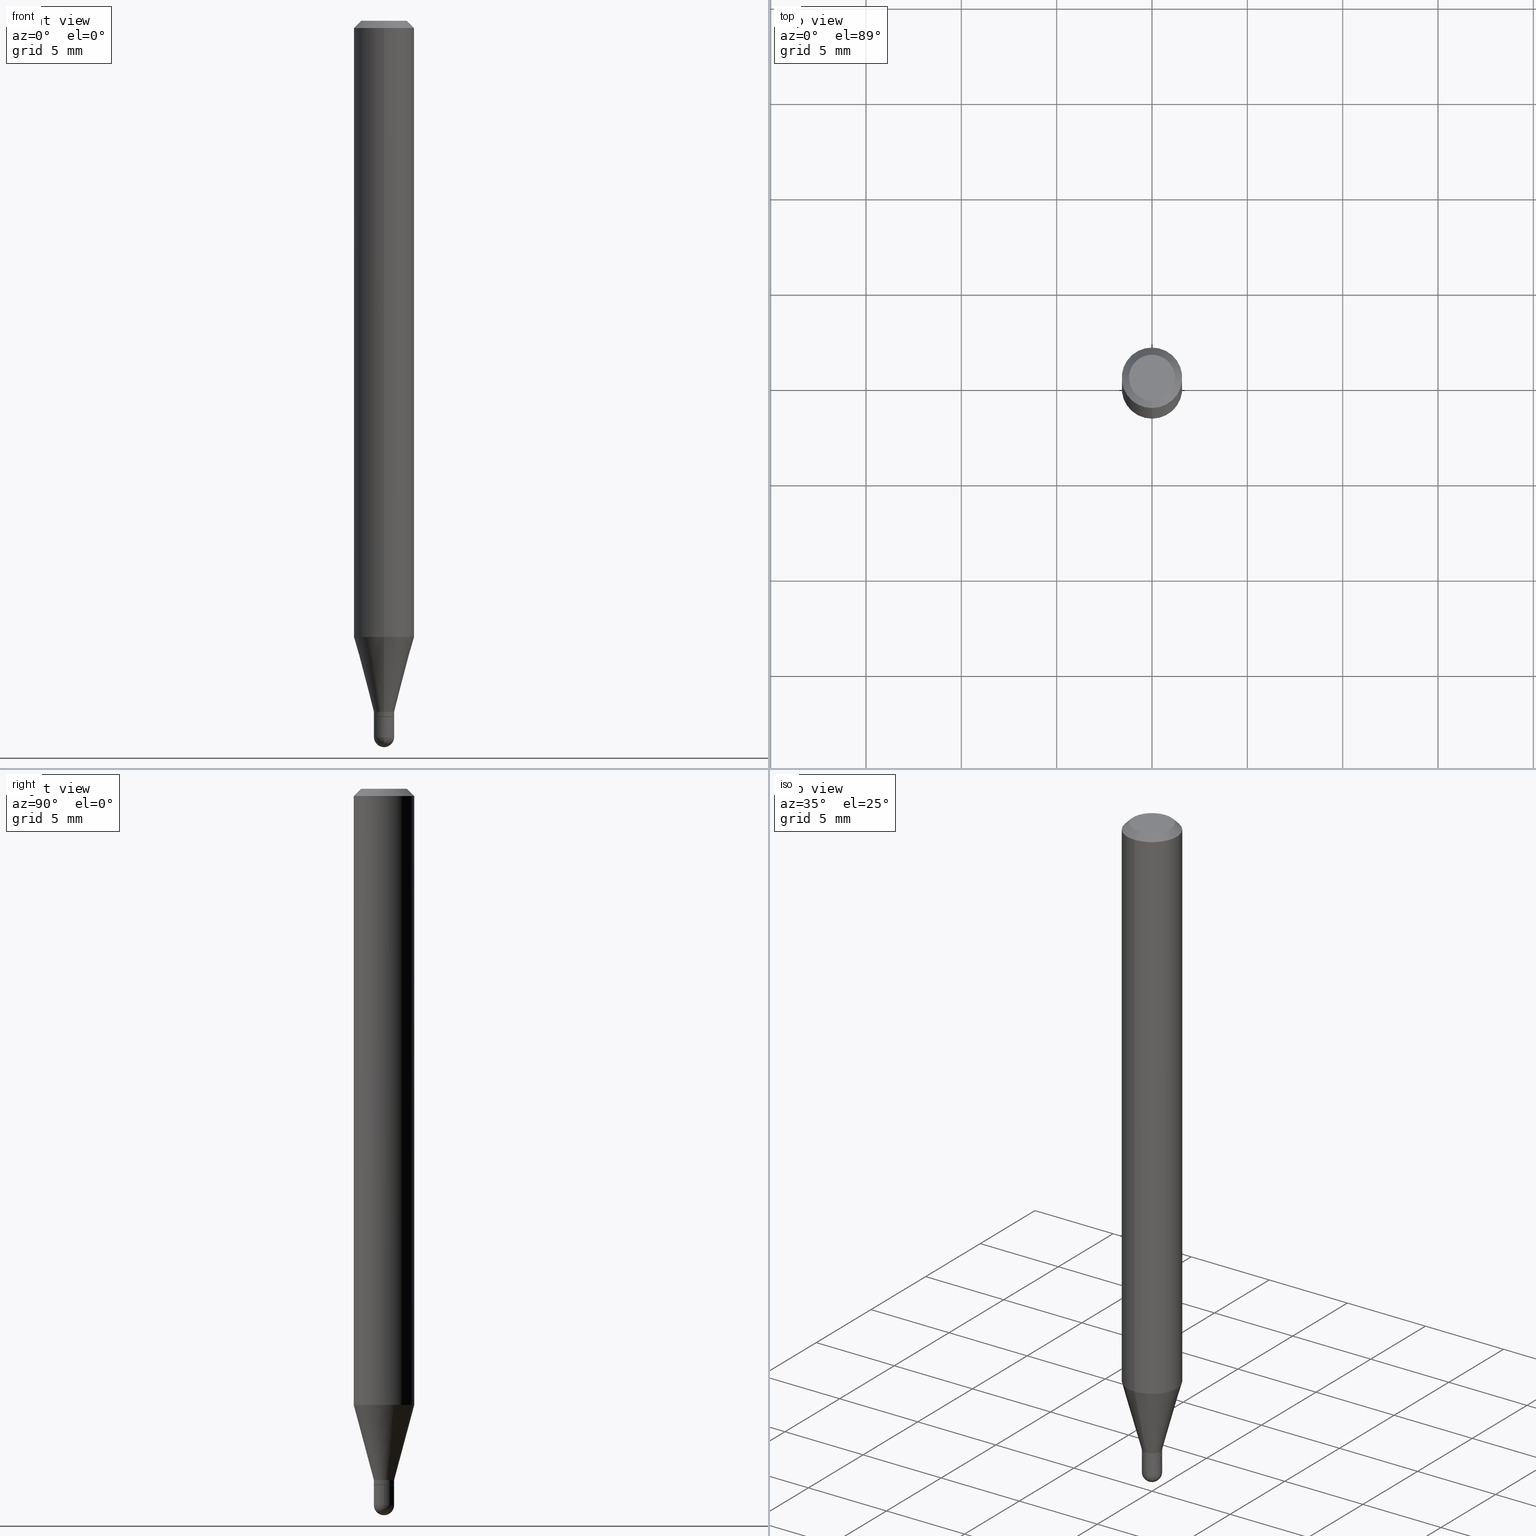
[diagram: canonical four-view strip — front | top / right | iso, engineering-drawing reading convention]
A machine part, canonical four-view strip (front | top / right | iso — engineering-drawing reading convention). The complete STEP part file that produces these views, byte-faithful:
ISO-10303-21;
HEADER;
FILE_DESCRIPTION (( 'STEP AP203' ),
    '1' );
FILE_NAME ('02539.STEP',
    '2024-03-07T20:19:08',
    ( '' ),
    ( '' ),
    'SwSTEP 2.0',
    'SolidWorks 2023',
    '' );
FILE_SCHEMA (( 'CONFIG_CONTROL_DESIGN' ));
ENDSEC;

DATA;
#1 = EDGE_LOOP ( 'NONE', ( #388, #468, #308, #63 ) ) ;
#2 = EDGE_CURVE ( 'NONE', #346, #252, #447, .T. ) ;
#3 = CARTESIAN_POINT ( 'NONE',  ( -1.466422162313761505E-16, -0.02100000000000490363, -1.427000000000000046 ) ) ;
#4 = DATE_AND_TIME ( #358, #172 ) ;
#5 = AXIS2_PLACEMENT_3D ( 'NONE', #84, #413, #50 ) ;
#6 = ORIENTED_EDGE ( 'NONE', *, *, #453, .F. ) ;
#7 = LINE ( 'NONE', #319, #183 ) ;
#8 = PERSON_AND_ORGANIZATION ( #212, #211 ) ;
#9 = CARTESIAN_POINT ( 'NONE',  ( 3.668221272824228849E-31, -5.237196140238213400E-17, -0.01500000000000032904 ) ) ;
#10 = DIRECTION ( 'NONE',  ( -2.445480848549432183E-29, 3.491464093492065747E-15, 1.000000000000000000 ) ) ;
#11 = APPROVAL ( #321, 'UNSPECIFIED' ) ;
#12 = CIRCLE ( 'NONE', #217, 0.02099999999999992151 ) ;
#13 = AXIS2_PLACEMENT_3D ( 'NONE', #225, #165, #233 ) ;
#14 = LOCAL_TIME ( 15, 19, 8.000000000000000000, #489 ) ;
#15 = FACE_OUTER_BOUND ( 'NONE', #302, .T. ) ;
#16 = EDGE_LOOP ( 'NONE', ( #424, #428, #434, #29 ) ) ;
#17 = PLANE ( 'NONE',  #125 ) ;
#18 = CALENDAR_DATE ( 2024, 7, 3 ) ;
#19 = EDGE_CURVE ( 'NONE', #178, #270, #56, .T. ) ;
#20 = CONICAL_SURFACE ( 'NONE', #344, 0.02099999999999992151, 0.2617993877991500740 ) ;
#21 = ORIENTED_EDGE ( 'NONE', *, *, #383, .T. ) ;
#22 = DIRECTION ( 'NONE',  ( 1.839019923739598738E-15, 0.2588190451025247363, 0.9659258262890673130 ) ) ;
#23 = VERTEX_POINT ( 'NONE', #34 ) ;
#24 = EDGE_CURVE ( 'NONE', #399, #58, #43, .T. ) ;
#25 = LENGTH_MEASURE_WITH_UNIT ( LENGTH_MEASURE( 0.02539999999999999897 ), #440 );
#26 = ORIENTED_EDGE ( 'NONE', *, *, #492, .F. ) ;
#27 = DIRECTION ( 'NONE',  ( 1.000000000000000000, -6.982962677686284854E-15, 0.000000000000000000 ) ) ;
#28 = APPLICATION_CONTEXT ( 'configuration controlled 3d designs of mechanical parts and assemblies' ) ;
#29 = ORIENTED_EDGE ( 'NONE', *, *, #338, .F. ) ;
#30 = AXIS2_PLACEMENT_3D ( 'NONE', #479, #349, #27 ) ;
#31 = CIRCLE ( 'NONE', #117, 0.02100000000000020947 ) ;
#32 = DIRECTION ( 'NONE',  ( 1.000000000000000000, -6.982962677686284854E-15, 0.000000000000000000 ) ) ;
#33 = DIRECTION ( 'NONE',  ( -2.445468806185136877E-29, 3.491481338843145188E-15, 1.000000000000000000 ) ) ;
#34 = CARTESIAN_POINT ( 'NONE',  ( 0.02100000000000000477, -5.237222008264718177E-15, -1.479000000000000092 ) ) ;
#35 = ORIENTED_EDGE ( 'NONE', *, *, #460, .F. ) ;
#36 = DIRECTION ( 'NONE',  ( -6.982962677686266711E-15, -1.000000000000000000, 3.491464093492066142E-15 ) ) ;
#37 = DIRECTION ( 'NONE',  ( -2.445480848549432183E-29, 3.491464093492065747E-15, 1.000000000000000000 ) ) ;
#38 = ORIENTED_EDGE ( 'NONE', *, *, #299, .F. ) ;
#39 = DIRECTION ( 'NONE',  ( -6.982962677686265922E-15, -1.000000000000000000, 4.370956789862821150E-15 ) ) ;
#40 = COORDINATED_UNIVERSAL_TIME_OFFSET ( 5, 0, .BEHIND. ) ;
#41 = ORIENTED_EDGE ( 'NONE', *, *, #512, .T. ) ;
#42 = SPHERICAL_SURFACE ( 'NONE', #409, 0.02100000000000020947 ) ;
#43 = LINE ( 'NONE', #3, #462 ) ;
#44 = CARTESIAN_POINT ( 'NONE',  ( 4.440892098500625669E-16, 0.06250000000000000000, -2.182165058432541092E-16 ) ) ;
#45 = PERSON_AND_ORGANIZATION_ROLE ( 'creator' ) ;
#46 = EDGE_CURVE ( 'NONE', #147, #191, #289, .T. ) ;
#47 = ADVANCED_FACE ( 'NONE', ( #357 ), #240, .F. ) ;
#48 = COORDINATED_UNIVERSAL_TIME_OFFSET ( 5, 0, .BEHIND. ) ;
#49 = PERSON_AND_ORGANIZATION_ROLE ( 'design_supplier' ) ;
#50 = DIRECTION ( 'NONE',  ( -6.982962677686265922E-15, -1.000000000000000000, 3.483106191921935554E-15 ) ) ;
#51 = CIRCLE ( 'NONE', #248, 0.02100000000000000477 ) ;
#52 = CC_DESIGN_APPROVAL ( #85, ( #53 ) ) ;
#53 = PRODUCT_DEFINITION ( 'UNKNOWN', '', #250, #377 ) ;
#54 = CARTESIAN_POINT ( 'NONE',  ( -1.431507348925333159E-16, -0.02050000000000501768, -1.437000000000000055 ) ) ;
#55 = EDGE_LOOP ( 'NONE', ( #443, #478, #298, #437 ) ) ;
#56 = CIRCLE ( 'NONE', #229, 0.02100000000000020947 ) ;
#57 = AXIS2_PLACEMENT_3D ( 'NONE', #228, #311, #386 ) ;
#58 = VERTEX_POINT ( 'NONE', #123 ) ;
#59 = COORDINATED_UNIVERSAL_TIME_OFFSET ( 5, 0, .BEHIND. ) ;
#60 = EDGE_CURVE ( 'NONE', #384, #58, #241, .T. ) ;
#61 = CARTESIAN_POINT ( 'NONE',  ( 0.000000000000000000, 0.000000000000000000, 0.000000000000000000 ) ) ;
#62 = FACE_OUTER_BOUND ( 'NONE', #215, .T. ) ;
#63 = ORIENTED_EDGE ( 'NONE', *, *, #145, .F. ) ;
#64 = AXIS2_PLACEMENT_3D ( 'NONE', #451, #430, #387 ) ;
#65 = AXIS2_PLACEMENT_3D ( 'NONE', #152, #187, #406 ) ;
#66 = VERTEX_POINT ( 'NONE', #192 ) ;
#67 = ORIENTED_EDGE ( 'NONE', *, *, #174, .F. ) ;
#68 = DIRECTION ( 'NONE',  ( -4.851104656540964275E-15, -0.7071067811865500152, -0.7071067811865450192 ) ) ;
#69 = CARTESIAN_POINT ( 'NONE',  ( 3.840629472727447874E-16, 0.04749999999999999362, -4.939923113072091241E-16 ) ) ;
#70 = ORIENTED_EDGE ( 'NONE', *, *, #200, .T. ) ;
#71 = AXIS2_PLACEMENT_3D ( 'NONE', #199, #438, #267 ) ;
#72 = LOCAL_TIME ( 15, 19, 8.000000000000000000, #166 ) ;
#73 = DIRECTION ( 'NONE',  ( -2.445480848549432183E-29, 3.491464093492066142E-15, 1.000000000000000000 ) ) ;
#74 = ORIENTED_EDGE ( 'NONE', *, *, #408, .T. ) ;
#75 = FACE_OUTER_BOUND ( 'NONE', #55, .T. ) ;
#76 = MECHANICAL_CONTEXT ( 'NONE', #28, 'mechanical' ) ;
#77 = CC_DESIGN_PERSON_AND_ORGANIZATION_ASSIGNMENT ( #366, #129, ( #250 ) ) ;
#78 = ORIENTED_EDGE ( 'NONE', *, *, #167, .T. ) ;
#79 = CARTESIAN_POINT ( 'NONE',  ( 3.489701170880039634E-29, -4.982319261413178250E-15, -1.427000000000000046 ) ) ;
#80 = DIRECTION ( 'NONE',  ( -1.807323732225328562E-15, -0.2588190451025179639, 0.9659258262890690894 ) ) ;
#81 = AXIS2_PLACEMENT_3D ( 'NONE', #279, #483, #398 ) ;
#82 = APPROVAL_DATE_TIME ( #280, #11 ) ;
#83 = AXIS2_PLACEMENT_3D ( 'NONE', #496, #294, #481 ) ;
#84 = CARTESIAN_POINT ( 'NONE',  ( 3.668221272824228849E-31, -5.237196140238213400E-17, -0.01500000000000032904 ) ) ;
#85 = APPROVAL ( #244, 'UNSPECIFIED' ) ;
#86 = APPROVAL_ROLE ( '' ) ;
#87 = DIRECTION ( 'NONE',  ( -6.982962677686266711E-15, -1.000000000000000000, 0.000000000000000000 ) ) ;
#88 = ADVANCED_FACE ( 'NONE', ( #316 ), #122, .T. ) ;
#89 = PERSON_AND_ORGANIZATION ( #212, #211 ) ;
#90 = CLOSED_SHELL ( 'NONE', ( #426, #179, #259, #193, #458, #143, #88, #170, #47, #380, #365, #465 ) ) ;
#91 = APPROVAL_DATE_TIME ( #495, #216 ) ;
#92 = CARTESIAN_POINT ( 'NONE',  ( 0.000000000000000000, 0.000000000000000000, 0.000000000000000000 ) ) ;
#93 = ORIENTED_EDGE ( 'NONE', *, *, #299, .T. ) ;
#94 = AXIS2_PLACEMENT_3D ( 'NONE', #261, #394, #32 ) ;
#95 = LOCAL_TIME ( 15, 19, 8.000000000000000000, #48 ) ;
#96 = CC_DESIGN_DATE_AND_TIME_ASSIGNMENT ( #209, #320, ( #53 ) ) ;
#97 = APPROVAL_ROLE ( '' ) ;
#98 = FACE_OUTER_BOUND ( 'NONE', #112, .T. ) ;
#99 = ORIENTED_EDGE ( 'NONE', *, *, #500, .F. ) ;
#100 = CARTESIAN_POINT ( 'NONE',  ( 3.514155979365534026E-29, -5.017233902348097898E-15, -1.437000000000000055 ) ) ;
#101 = CARTESIAN_POINT ( 'NONE',  ( 3.616848364347817323E-29, -5.163900900149012660E-15, -1.479000000000000092 ) ) ;
#102 = DIRECTION ( 'NONE',  ( -1.000000000000000000, 6.982962677686265922E-15, -4.876176775795935793E-29 ) ) ;
#103 = CONICAL_SURFACE ( 'NONE', #171, 0.06250000000000000000, 0.7853981633974483900 ) ;
#104 = ORIENTED_EDGE ( 'NONE', *, *, #326, .T. ) ;
#105 =( GEOMETRIC_REPRESENTATION_CONTEXT ( 3 ) GLOBAL_UNCERTAINTY_ASSIGNED_CONTEXT ( ( #370 ) ) GLOBAL_UNIT_ASSIGNED_CONTEXT ( ( #194, #190, #507 ) ) REPRESENTATION_CONTEXT ( 'NONE', 'WORKASPACE' ) );
#106 = ORIENTED_EDGE ( 'NONE', *, *, #174, .T. ) ;
#107 = CARTESIAN_POINT ( 'NONE',  ( 1.492139745096551172E-16, 0.02099999999999484224, -1.436500000000000110 ) ) ;
#108 = DIRECTION ( 'NONE',  ( -2.445480848549432183E-29, 3.491464093492066142E-15, 1.000000000000000000 ) ) ;
#109 = EDGE_CURVE ( 'NONE', #461, #270, #126, .T. ) ;
#110 = CARTESIAN_POINT ( 'NONE',  ( -0.02100000000000000477, -4.941365817523685183E-15, -1.479000000000000092 ) ) ;
#111 = CARTESIAN_POINT ( 'NONE',  ( 3.665509435466790578E-29, -5.241079645682034568E-15, -1.500000000000000222 ) ) ;
#112 = EDGE_LOOP ( 'NONE', ( #78, #41 ) ) ;
#113 = CARTESIAN_POINT ( 'NONE',  ( -0.02100000000000000477, -4.941365817523685183E-15, -1.437000000000000055 ) ) ;
#114 = LINE ( 'NONE', #154, #281 ) ;
#115 = ORIENTED_EDGE ( 'NONE', *, *, #109, .F. ) ;
#116 = CARTESIAN_POINT ( 'NONE',  ( 3.615052515140540551E-29, -5.166472658427222799E-15, -1.479000000000000092 ) ) ;
#117 = AXIS2_PLACEMENT_3D ( 'NONE', #498, #144, #389 ) ;
#118 = DIRECTION ( 'NONE',  ( 6.982962677686265922E-15, 1.000000000000000000, -3.483106191921935554E-15 ) ) ;
#119 = DIRECTION ( 'NONE',  ( 1.000000000000000000, -6.982962677686284854E-15, 0.000000000000000000 ) ) ;
#120 = FACE_OUTER_BOUND ( 'NONE', #288, .T. ) ;
#121 = EDGE_LOOP ( 'NONE', ( #318, #151, #475, #497 ) ) ;
#122 = CYLINDRICAL_SURFACE ( 'NONE', #13, 0.06250000000000000000 ) ;
#123 = CARTESIAN_POINT ( 'NONE',  ( -4.364351673553605587E-16, -0.06250000000000445477, -1.272119891485891552 ) ) ;
#124 = CALENDAR_DATE ( 2024, 7, 3 ) ;
#125 = AXIS2_PLACEMENT_3D ( 'NONE', #182, #296, #102 ) ;
#126 = CIRCLE ( 'NONE', #30, 0.02100000000000000477 ) ;
#127 = VECTOR ( 'NONE', #68, 39.37007874015748143 ) ;
#128 = CARTESIAN_POINT ( 'NONE',  ( -1.466422162313764217E-16, -0.02100000000000501119, -1.436500000000000110 ) ) ;
#129 = PERSON_AND_ORGANIZATION_ROLE ( 'creator' ) ;
#130 = CC_DESIGN_DATE_AND_TIME_ASSIGNMENT ( #4, #317, ( #141 ) ) ;
#131 = VECTOR ( 'NONE', #444, 39.37007874015748143 ) ;
#132 = CIRCLE ( 'NONE', #480, 0.02100000000000000477 ) ;
#133 = ADVANCED_FACE ( 'NONE', ( #405 ), #509, .T. ) ;
#134 = APPROVAL_STATUS ( 'not_yet_approved' ) ;
#135 = DIRECTION ( 'NONE',  ( -2.445480848549432183E-29, 3.491464093492065747E-15, 1.000000000000000000 ) ) ;
#136 = ORIENTED_EDGE ( 'NONE', *, *, #408, .F. ) ;
#137 = EDGE_CURVE ( 'NONE', #356, #397, #493, .T. ) ;
#138 = DIRECTION ( 'NONE',  ( -6.982962677686265922E-15, -1.000000000000000000, 3.483106191921935554E-15 ) ) ;
#139 = CC_DESIGN_PERSON_AND_ORGANIZATION_ASSIGNMENT ( #454, #49, ( #250 ) ) ;
#140 = CARTESIAN_POINT ( 'NONE',  ( 3.668221272824228849E-31, -5.237196140238213400E-17, -0.01500000000000032904 ) ) ;
#141 = SECURITY_CLASSIFICATION ( '', '', #368 ) ;
#142 = DIRECTION ( 'NONE',  ( -4.937700262164674260E-15, -0.7071067811865632269, 0.7071067811865319186 ) ) ;
#143 = ADVANCED_FACE ( 'NONE', ( #189 ), #20, .T. ) ;
#144 = DIRECTION ( 'NONE',  ( 1.000000000000000000, -7.105427357601001070E-15, 4.926315508542082329E-29 ) ) ;
#145 = EDGE_CURVE ( 'NONE', #252, #399, #284, .T. ) ;
#146 = DIRECTION ( 'NONE',  ( -2.445480848549432183E-29, 3.491464093492065747E-15, 1.000000000000000000 ) ) ;
#147 = VERTEX_POINT ( 'NONE', #206 ) ;
#148 = EDGE_LOOP ( 'NONE', ( #181, #510, #501, #6 ) ) ;
#149 = AXIS2_PLACEMENT_3D ( 'NONE', #220, #375, #176 ) ;
#150 = CARTESIAN_POINT ( 'NONE',  ( 3.668221272824228849E-31, -5.237196140238213400E-17, -0.01500000000000032904 ) ) ;
#151 = ORIENTED_EDGE ( 'NONE', *, *, #145, .T. ) ;
#152 = CARTESIAN_POINT ( 'NONE',  ( 3.512933238941259587E-29, -5.015488170301352862E-15, -1.436500000000000110 ) ) ;
#153 = DIRECTION ( 'NONE',  ( -2.445480848549432183E-29, 3.491464093492065747E-15, 1.000000000000000000 ) ) ;
#154 = CARTESIAN_POINT ( 'NONE',  ( -4.364351673553916201E-16, -0.06250000000000000000, 2.182165058432541092E-16 ) ) ;
#155 = ORIENTED_EDGE ( 'NONE', *, *, #137, .F. ) ;
#156 = APPLICATION_CONTEXT ( 'configuration controlled 3d designs of mechanical parts and assemblies' ) ;
#157 = LINE ( 'NONE', #262, #203 ) ;
#158 = DIRECTION ( 'NONE',  ( -1.000000000000000000, 6.982962677686265922E-15, -4.883557194083112340E-29 ) ) ;
#159 = CARTESIAN_POINT ( 'NONE',  ( 1.474376176702556294E-16, 0.02049999999999498751, -1.437000000000000055 ) ) ;
#160 = ORIENTED_EDGE ( 'NONE', *, *, #200, .F. ) ;
#161 = AXIS2_PLACEMENT_3D ( 'NONE', #277, #477, #442 ) ;
#162 = APPROVAL_PERSON_ORGANIZATION ( #331, #216, #97 ) ;
#163 = DIRECTION ( 'NONE',  ( -2.445480848549432183E-29, 3.491464093492065747E-15, 1.000000000000000000 ) ) ;
#164 = VERTEX_POINT ( 'NONE', #113 ) ;
#165 = DIRECTION ( 'NONE',  ( -2.445480848549432183E-29, 3.491464093492065747E-15, 1.000000000000000000 ) ) ;
#166 = COORDINATED_UNIVERSAL_TIME_OFFSET ( 5, 0, .BEHIND. ) ;
#167 = EDGE_CURVE ( 'NONE', #218, #164, #51, .T. ) ;
#168 = CARTESIAN_POINT ( 'NONE',  ( -1.466422162313761752E-16, -0.02100000000000527139, -1.479000000000000092 ) ) ;
#169 = APPLICATION_PROTOCOL_DEFINITION ( 'international standard', 'config_control_design', 1994, #156 ) ;
#170 = ADVANCED_FACE ( 'NONE', ( #484 ), #414, .T. ) ;
#171 = AXIS2_PLACEMENT_3D ( 'NONE', #9, #242, #118 ) ;
#172 = LOCAL_TIME ( 15, 19, 8.000000000000000000, #40 ) ;
#173 = PERSON_AND_ORGANIZATION_ROLE ( 'design_owner' ) ;
#174 = EDGE_CURVE ( 'NONE', #23, #218, #7, .T. ) ;
#175 = SHAPE_DEFINITION_REPRESENTATION ( #264, #295 ) ;
#176 = DIRECTION ( 'NONE',  ( -6.982962677686265922E-15, -1.000000000000000000, 4.370956789862821150E-15 ) ) ;
#177 = CIRCLE ( 'NONE', #94, 0.02100000000000000477 ) ;
#178 = VERTEX_POINT ( 'NONE', #111 ) ;
#179 = ADVANCED_FACE ( 'NONE', ( #75 ), #419, .T. ) ;
#180 = LINE ( 'NONE', #330, #301 ) ;
#181 = ORIENTED_EDGE ( 'NONE', *, *, #291, .F. ) ;
#182 = CARTESIAN_POINT ( 'NONE',  ( 1.466422162314467535E-16, 0.02099999999999498795, -1.437000000000000055 ) ) ;
#183 = VECTOR ( 'NONE', #272, 39.37007874015748143 ) ;
#184 = VECTOR ( 'NONE', #142, 39.37007874015748143 ) ;
#185 = DIRECTION ( 'NONE',  ( -6.982962677686266711E-15, -1.000000000000000000, 0.000000000000000000 ) ) ;
#186 = ORIENTED_EDGE ( 'NONE', *, *, #247, .F. ) ;
#187 = DIRECTION ( 'NONE',  ( -2.445480848549432183E-29, 3.491464093492065747E-15, 1.000000000000000000 ) ) ;
#188 = ORIENTED_EDGE ( 'NONE', *, *, #460, .T. ) ;
#189 = FACE_OUTER_BOUND ( 'NONE', #121, .T. ) ;
#190 =( NAMED_UNIT ( * ) PLANE_ANGLE_UNIT ( ) SI_UNIT ( $, .RADIAN. ) );
#191 = VERTEX_POINT ( 'NONE', #69 ) ;
#192 = CARTESIAN_POINT ( 'NONE',  ( 4.440892098500938748E-16, 0.06249999999999995143, -0.01500000000000054588 ) ) ;
#193 = ADVANCED_FACE ( 'NONE', ( #457 ), #213, .T. ) ;
#194 =( CONVERSION_BASED_UNIT ( 'INCH', #25 ) LENGTH_UNIT ( ) NAMED_UNIT ( #227 ) );
#195 = VERTEX_POINT ( 'NONE', #128 ) ;
#196 = CARTESIAN_POINT ( 'NONE',  ( 1.492139745096579522E-16, 0.02099999999999493938, -1.479000000000000092 ) ) ;
#197 = DIRECTION ( 'NONE',  ( -6.982962677686265922E-15, -1.000000000000000000, 0.000000000000000000 ) ) ;
#198 = EDGE_LOOP ( 'NONE', ( #327, #160, #93, #333 ) ) ;
#199 = CARTESIAN_POINT ( 'NONE',  ( 3.316907271900976096E-16, 0.04749999999999999362, -3.299184278740410920E-16 ) ) ;
#200 = EDGE_CURVE ( 'NONE', #191, #147, #334, .T. ) ;
#201 = ORIENTED_EDGE ( 'NONE', *, *, #416, .T. ) ;
#202 = CIRCLE ( 'NONE', #455, 0.02099999999999992498 ) ;
#203 = VECTOR ( 'NONE', #392, 39.37007874015748143 ) ;
#204 = FACE_OUTER_BOUND ( 'NONE', #339, .T. ) ;
#205 = FACE_OUTER_BOUND ( 'NONE', #231, .T. ) ;
#206 = CARTESIAN_POINT ( 'NONE',  ( -3.773273898774340269E-16, -0.04749999999999999362, -1.623032224254629057E-16 ) ) ;
#207 = DATE_AND_TIME ( #278, #14 ) ;
#208 = ADVANCED_FACE ( 'NONE', ( #452 ), #283, .T. ) ;
#209 = DATE_AND_TIME ( #124, #72 ) ;
#210 = PERSON_AND_ORGANIZATION ( #212, #211 ) ;
#211 = ORGANIZATION ( 'UNSPECIFIED', 'UNSPECIFIED', '' ) ;
#212 = PERSON ( 'UNSPECIFIED', 'UNSPECIFIED', 'UNSPECIFIED', ('UNSPECIFIED'), ('UNSPECIFIED'), ('UNSPECIFIED') ) ;
#213 = CYLINDRICAL_SURFACE ( 'NONE', #323, 0.06250000000000000000 ) ;
#214 = EDGE_CURVE ( 'NONE', #346, #195, #202, .T. ) ;
#215 = EDGE_LOOP ( 'NONE', ( #361, #238, #499, #418 ) ) ;
#216 = APPROVAL ( #134, 'UNSPECIFIED' ) ;
#217 = AXIS2_PLACEMENT_3D ( 'NONE', #369, #410, #87 ) ;
#218 = VERTEX_POINT ( 'NONE', #427 ) ;
#219 = VECTOR ( 'NONE', #363, 39.37007874015748143 ) ;
#220 = CARTESIAN_POINT ( 'NONE',  ( 3.110944831687530350E-29, -4.441560923740014172E-15, -1.272119891485891774 ) ) ;
#221 = ORIENTED_EDGE ( 'NONE', *, *, #46, .F. ) ;
#222 = CARTESIAN_POINT ( 'NONE',  ( -4.287811248607203282E-16, -0.06250000000000005551, -0.01500000000000011047 ) ) ;
#223 = ORIENTED_EDGE ( 'NONE', *, *, #291, .T. ) ;
#224 = DIRECTION ( 'NONE',  ( -2.445468806185136597E-29, 3.491481338843145583E-15, 1.000000000000000000 ) ) ;
#225 = CARTESIAN_POINT ( 'NONE',  ( 0.000000000000000000, 0.000000000000000000, 0.000000000000000000 ) ) ;
#226 = ADVANCED_FACE ( 'NONE', ( #98 ), #17, .F. ) ;
#227 = DIMENSIONAL_EXPONENTS ( 1.000000000000000000, 0.000000000000000000, 0.000000000000000000, 0.000000000000000000, 0.000000000000000000, 0.000000000000000000, 0.000000000000000000 ) ;
#228 = CARTESIAN_POINT ( 'NONE',  ( 3.514138674488041056E-29, -5.017258683917600838E-15, -1.437000000000000055 ) ) ;
#229 = AXIS2_PLACEMENT_3D ( 'NONE', #395, #158, #197 ) ;
#230 = CC_DESIGN_SECURITY_CLASSIFICATION ( #141, ( #250 ) ) ;
#231 = EDGE_LOOP ( 'NONE', ( #340, #265, #115, #403 ) ) ;
#232 = CARTESIAN_POINT ( 'NONE',  ( 0.000000000000000000, 0.000000000000000000, 0.000000000000000000 ) ) ;
#233 = DIRECTION ( 'NONE',  ( -6.982962677686265922E-15, -1.000000000000000000, 3.491464093492065747E-15 ) ) ;
#234 = CARTESIAN_POINT ( 'NONE',  ( 3.514155979365534026E-29, -5.017233902348097898E-15, -1.437000000000000055 ) ) ;
#235 = ORIENTED_EDGE ( 'NONE', *, *, #109, .T. ) ;
#236 = CARTESIAN_POINT ( 'NONE',  ( 3.514155979365534026E-29, -5.017233902348097898E-15, -1.437000000000000055 ) ) ;
#237 = DIRECTION ( 'NONE',  ( -2.445480848549432183E-29, 3.491464093492066142E-15, 1.000000000000000000 ) ) ;
#238 = ORIENTED_EDGE ( 'NONE', *, *, #137, .T. ) ;
#239 = DIRECTION ( 'NONE',  ( -6.982962677686266711E-15, -1.000000000000000000, 0.000000000000000000 ) ) ;
#240 = PLANE ( 'NONE',  #71 ) ;
#241 = CIRCLE ( 'NONE', #300, 0.06250000000000000000 ) ;
#242 = DIRECTION ( 'NONE',  ( 2.445480848549432183E-29, -3.491464093492065747E-15, -1.000000000000000000 ) ) ;
#243 = DIRECTION ( 'NONE',  ( -6.982962677686266711E-15, -1.000000000000000000, 0.000000000000000000 ) ) ;
#244 = APPROVAL_STATUS ( 'not_yet_approved' ) ;
#245 = DIRECTION ( 'NONE',  ( -6.982962677686265922E-15, -1.000000000000000000, 3.491464093492066142E-15 ) ) ;
#246 = CARTESIAN_POINT ( 'NONE',  ( 3.512933238941259587E-29, -5.015488170301352862E-15, -1.436500000000000110 ) ) ;
#247 = EDGE_CURVE ( 'NONE', #195, #399, #256, .T. ) ;
#248 = AXIS2_PLACEMENT_3D ( 'NONE', #353, #472, #119 ) ;
#249 = DIRECTION ( 'NONE',  ( -6.982962677686266711E-15, -1.000000000000000000, 0.000000000000000000 ) ) ;
#250 = PRODUCT_DEFINITION_FORMATION_WITH_SPECIFIED_SOURCE ( 'ANY', '', #347, .NOT_KNOWN. ) ;
#251 = LINE ( 'NONE', #491, #184 ) ;
#252 = VERTEX_POINT ( 'NONE', #400 ) ;
#253 = CC_DESIGN_PERSON_AND_ORGANIZATION_ASSIGNMENT ( #411, #45, ( #53 ) ) ;
#254 = DIRECTION ( 'NONE',  ( -2.445480848549431342E-29, 3.491464093492066142E-15, 1.000000000000000000 ) ) ;
#255 = FACE_OUTER_BOUND ( 'NONE', #16, .T. ) ;
#256 = LINE ( 'NONE', #314, #131 ) ;
#257 = AXIS2_PLACEMENT_3D ( 'NONE', #140, #146, #138 ) ;
#258 = ORIENTED_EDGE ( 'NONE', *, *, #512, .F. ) ;
#259 = ADVANCED_FACE ( 'NONE', ( #204 ), #103, .T. ) ;
#260 = ORIENTED_EDGE ( 'NONE', *, *, #450, .T. ) ;
#261 = CARTESIAN_POINT ( 'NONE',  ( 3.616848364347817323E-29, -5.163900900149012660E-15, -1.479000000000000092 ) ) ;
#262 = CARTESIAN_POINT ( 'NONE',  ( 1.456612608308556732E-16, 0.02049999999999498751, -1.437000000000000055 ) ) ;
#263 = DIRECTION ( 'NONE',  ( -2.445480848549432183E-29, 3.491464093492065747E-15, 1.000000000000000000 ) ) ;
#264 = PRODUCT_DEFINITION_SHAPE ( 'NONE', 'NONE',  #53 ) ;
#265 = ORIENTED_EDGE ( 'NONE', *, *, #19, .T. ) ;
#266 = LINE ( 'NONE', #371, #219 ) ;
#267 = DIRECTION ( 'NONE',  ( 6.982962677686265922E-15, 1.000000000000000000, -3.491464093492066142E-15 ) ) ;
#268 = AXIS2_PLACEMENT_3D ( 'NONE', #236, #263, #435 ) ;
#269 = CONICAL_SURFACE ( 'NONE', #456, 0.02099999999999992151, 0.2617993877991500740 ) ;
#270 = VERTEX_POINT ( 'NONE', #168 ) ;
#271 = DIRECTION ( 'NONE',  ( 1.000000000000000000, -6.982962677686266711E-15, 4.883557194083112340E-29 ) ) ;
#272 = DIRECTION ( 'NONE',  ( -2.445468806185136877E-29, 3.491481338843145188E-15, 1.000000000000000000 ) ) ;
#273 = APPLICATION_PROTOCOL_DEFINITION ( 'international standard', 'config_control_design', 1994, #28 ) ;
#274 = DIRECTION ( 'NONE',  ( -6.982962677686266711E-15, -1.000000000000000000, 0.000000000000000000 ) ) ;
#275 = VERTEX_POINT ( 'NONE', #196 ) ;
#276 = CARTESIAN_POINT ( 'NONE',  ( -0.02100000000000000477, 1.492139745096210730E-16, -1.032976368953530510E-30 ) ) ;
#277 = CARTESIAN_POINT ( 'NONE',  ( 3.514155979365534026E-29, -5.017233902348097898E-15, -1.437000000000000055 ) ) ;
#278 = CALENDAR_DATE ( 2024, 7, 3 ) ;
#279 = CARTESIAN_POINT ( 'NONE',  ( 0.000000000000000000, 0.000000000000000000, 0.000000000000000000 ) ) ;
#280 = DATE_AND_TIME ( #485, #95 ) ;
#281 = VECTOR ( 'NONE', #237, 39.37007874015748143 ) ;
#282 = APPROVAL_DATE_TIME ( #207, #85 ) ;
#283 = CYLINDRICAL_SURFACE ( 'NONE', #359, 0.02100000000000000477 ) ;
#284 = CIRCLE ( 'NONE', #381, 0.02099999999999992151 ) ;
#285 = AXIS2_PLACEMENT_3D ( 'NONE', #61, #135, #425 ) ;
#286 = DIRECTION ( 'NONE',  ( -2.445468806185136597E-29, 3.491481338843145583E-15, 1.000000000000000000 ) ) ;
#287 = DIRECTION ( 'NONE',  ( 1.000000000000000000, -6.982962677686266711E-15, 4.883557194083112340E-29 ) ) ;
#288 = EDGE_LOOP ( 'NONE', ( #99, #155 ) ) ;
#289 = CIRCLE ( 'NONE', #345, 0.04749999999999999362 ) ;
#290 = FACE_OUTER_BOUND ( 'NONE', #420, .T. ) ;
#291 = EDGE_CURVE ( 'NONE', #384, #66, #362, .T. ) ;
#292 = APPROVAL_PERSON_ORGANIZATION ( #210, #85, #325 ) ;
#293 = CARTESIAN_POINT ( 'NONE',  ( 3.489701170880039634E-29, -4.982319261413178250E-15, -1.427000000000000046 ) ) ;
#294 = DIRECTION ( 'NONE',  ( -2.445480848549432183E-29, 3.491464093492065747E-15, 1.000000000000000000 ) ) ;
#295 = ADVANCED_BREP_SHAPE_REPRESENTATION ( '02539', ( #432, #436, #487 ), #105 ) ;
#296 = DIRECTION ( 'NONE',  ( 2.438088387897960049E-29, -3.491481338843145188E-15, -1.000000000000000000 ) ) ;
#297 = EDGE_CURVE ( 'NONE', #23, #275, #177, .T. ) ;
#298 = ORIENTED_EDGE ( 'NONE', *, *, #355, .F. ) ;
#299 = EDGE_CURVE ( 'NONE', #191, #66, #266, .T. ) ;
#300 = AXIS2_PLACEMENT_3D ( 'NONE', #343, #153, #39 ) ;
#301 = VECTOR ( 'NONE', #22, 39.37007874015748854 ) ;
#302 = EDGE_LOOP ( 'NONE', ( #376, #482, #136, #186 ) ) ;
#303 = DIRECTION ( 'NONE',  ( -6.982962677686266711E-15, -1.000000000000000000, 0.000000000000000000 ) ) ;
#304 = ORIENTED_EDGE ( 'NONE', *, *, #383, .F. ) ;
#305 = SPHERICAL_SURFACE ( 'NONE', #312, 0.02100000000000020947 ) ;
#306 = CARTESIAN_POINT ( 'NONE',  ( 8.024790793658886840E-45, -1.145716145373417508E-30, -3.281477668663360149E-16 ) ) ;
#307 = DIRECTION ( 'NONE',  ( -2.445480848549432183E-29, 3.491464093492065747E-15, 1.000000000000000000 ) ) ;
#308 = ORIENTED_EDGE ( 'NONE', *, *, #247, .T. ) ;
#309 = DIRECTION ( 'NONE',  ( -2.445480848549432183E-29, 3.491464093492065747E-15, 1.000000000000000000 ) ) ;
#310 = ADVANCED_FACE ( 'NONE', ( #205 ), #42, .T. ) ;
#311 = DIRECTION ( 'NONE',  ( -2.445468806185136597E-29, 3.491481338843145583E-15, 1.000000000000000000 ) ) ;
#312 = AXIS2_PLACEMENT_3D ( 'NONE', #476, #287, #185 ) ;
#313 = ORIENTED_EDGE ( 'NONE', *, *, #297, .T. ) ;
#314 = CARTESIAN_POINT ( 'NONE',  ( -1.466422162314110822E-16, -0.02099999999999992498, 7.332074596333312638E-17 ) ) ;
#315 = LINE ( 'NONE', #276, #422 ) ;
#316 = FACE_OUTER_BOUND ( 'NONE', #148, .T. ) ;
#317 = DATE_TIME_ROLE ( 'classification_date' ) ;
#318 = ORIENTED_EDGE ( 'NONE', *, *, #450, .F. ) ;
#319 = CARTESIAN_POINT ( 'NONE',  ( 0.02100000000000000477, -1.466422162314116246E-16, 1.023997122917146650E-30 ) ) ;
#320 = DATE_TIME_ROLE ( 'creation_date' ) ;
#321 = APPROVAL_STATUS ( 'not_yet_approved' ) ;
#322 = PRODUCT_RELATED_PRODUCT_CATEGORY ( 'detail', '', ( #347 ) ) ;
#323 = AXIS2_PLACEMENT_3D ( 'NONE', #92, #10, #488 ) ;
#324 = CIRCLE ( 'NONE', #5, 0.06250000000000000000 ) ;
#325 = APPROVAL_ROLE ( '' ) ;
#326 = EDGE_CURVE ( 'NONE', #147, #336, #404, .T. ) ;
#327 = ORIENTED_EDGE ( 'NONE', *, *, #326, .F. ) ;
#328 = AXIS2_PLACEMENT_3D ( 'NONE', #232, #348, #36 ) ;
#329 = EDGE_LOOP ( 'NONE', ( #471, #188, #463, #67, #313 ) ) ;
#330 = CARTESIAN_POINT ( 'NONE',  ( 1.492139745096553638E-16, 0.02099999999999493938, -1.427000000000000046 ) ) ;
#331 = PERSON_AND_ORGANIZATION ( #212, #211 ) ;
#332 = EDGE_CURVE ( 'NONE', #178, #275, #31, .T. ) ;
#333 = ORIENTED_EDGE ( 'NONE', *, *, #453, .T. ) ;
#334 = CIRCLE ( 'NONE', #64, 0.04749999999999999362 ) ;
#335 = CC_DESIGN_APPROVAL ( #216, ( #141 ) ) ;
#336 = VERTEX_POINT ( 'NONE', #337 ) ;
#337 = CARTESIAN_POINT ( 'NONE',  ( -4.364351673553912750E-16, -0.06250000000000005551, -0.01500000000000011047 ) ) ;
#338 = EDGE_CURVE ( 'NONE', #270, #23, #132, .T. ) ;
#339 = EDGE_LOOP ( 'NONE', ( #221, #104, #21, #38 ) ) ;
#340 = ORIENTED_EDGE ( 'NONE', *, *, #332, .F. ) ;
#341 = DIRECTION ( 'NONE',  ( 1.000000000000000000, -6.982962677686284854E-15, 0.000000000000000000 ) ) ;
#342 = CARTESIAN_POINT ( 'NONE',  ( 3.616848364347817323E-29, -5.163900900149012660E-15, -1.479000000000000092 ) ) ;
#343 = CARTESIAN_POINT ( 'NONE',  ( 3.110944831687530350E-29, -4.441560923740014172E-15, -1.272119891485891774 ) ) ;
#344 = AXIS2_PLACEMENT_3D ( 'NONE', #446, #37, #243 ) ;
#345 = AXIS2_PLACEMENT_3D ( 'NONE', #306, #163, #401 ) ;
#346 = VERTEX_POINT ( 'NONE', #107 ) ;
#347 = PRODUCT ( '02539', '02539', '', ( #76 ) ) ;
#348 = DIRECTION ( 'NONE',  ( -2.445480848549432183E-29, 3.491464093492065747E-15, 1.000000000000000000 ) ) ;
#349 = DIRECTION ( 'NONE',  ( -2.445468806185136597E-29, 3.491481338843145583E-15, 1.000000000000000000 ) ) ;
#350 = ORIENTED_EDGE ( 'NONE', *, *, #416, .F. ) ;
#351 = ADVANCED_FACE ( 'NONE', ( #255 ), #305, .T. ) ;
#352 = DIRECTION ( 'NONE',  ( 1.000000000000000000, -6.982962677686284854E-15, 0.000000000000000000 ) ) ;
#353 = CARTESIAN_POINT ( 'NONE',  ( 3.514138674488041056E-29, -5.017258683917600838E-15, -1.437000000000000055 ) ) ;
#354 = DIRECTION ( 'NONE',  ( 1.000000000000000000, 0.000000000000000000, 0.000000000000000000 ) ) ;
#355 = EDGE_CURVE ( 'NONE', #195, #346, #373, .T. ) ;
#356 = VERTEX_POINT ( 'NONE', #159 ) ;
#357 = FACE_OUTER_BOUND ( 'NONE', #431, .T. ) ;
#358 = CALENDAR_DATE ( 2024, 7, 3 ) ;
#359 = AXIS2_PLACEMENT_3D ( 'NONE', #459, #286, #415 ) ;
#360 = AXIS2_PLACEMENT_3D ( 'NONE', #342, #503, #352 ) ;
#361 = ORIENTED_EDGE ( 'NONE', *, *, #474, .F. ) ;
#362 = LINE ( 'NONE', #44, #407 ) ;
#363 = DIRECTION ( 'NONE',  ( 4.937700262164548042E-15, 0.7071067811865451302, -0.7071067811865499042 ) ) ;
#364 = DIRECTION ( 'NONE',  ( 6.982962677686265922E-15, 1.000000000000000000, -3.483106191921935554E-15 ) ) ;
#365 = ADVANCED_FACE ( 'NONE', ( #62 ), #439, .T. ) ;
#366 = PERSON_AND_ORGANIZATION ( #212, #211 ) ;
#367 = APPROVAL_PERSON_ORGANIZATION ( #8, #11, #86 ) ;
#368 = SECURITY_CLASSIFICATION_LEVEL ( 'unclassified' ) ;
#369 = CARTESIAN_POINT ( 'NONE',  ( 3.489701170880039634E-29, -4.982319261413178250E-15, -1.427000000000000046 ) ) ;
#370 = UNCERTAINTY_MEASURE_WITH_UNIT (LENGTH_MEASURE( 1.000000000000000082E-05 ), #194, 'distance_accuracy_value', 'NONE');
#371 = CARTESIAN_POINT ( 'NONE',  ( 4.364351673553919652E-16, 0.06249999999999995143, -0.01500000000000054588 ) ) ;
#372 = ORIENTED_EDGE ( 'NONE', *, *, #24, .F. ) ;
#373 = CIRCLE ( 'NONE', #65, 0.02099999999999992498 ) ;
#374 = DIRECTION ( 'NONE',  ( -2.445480848549432183E-29, 3.491464093492065747E-15, 1.000000000000000000 ) ) ;
#375 = DIRECTION ( 'NONE',  ( -2.445480848549432183E-29, 3.491464093492065747E-15, 1.000000000000000000 ) ) ;
#376 = ORIENTED_EDGE ( 'NONE', *, *, #355, .T. ) ;
#377 = DESIGN_CONTEXT ( 'detailed design', #156, 'design' ) ;
#378 = ORIENTED_EDGE ( 'NONE', *, *, #46, .T. ) ;
#379 = DIRECTION ( 'NONE',  ( -6.982962677686266711E-15, -1.000000000000000000, 0.000000000000000000 ) ) ;
#380 = ADVANCED_FACE ( 'NONE', ( #120 ), #467, .F. ) ;
#381 = AXIS2_PLACEMENT_3D ( 'NONE', #79, #309, #303 ) ;
#382 = AXIS2_PLACEMENT_3D ( 'NONE', #234, #307, #274 ) ;
#383 = EDGE_CURVE ( 'NONE', #336, #66, #324, .T. ) ;
#384 = VERTEX_POINT ( 'NONE', #417 ) ;
#385 = DIRECTION ( 'NONE',  ( 0.000000000000000000, 0.000000000000000000, 1.000000000000000000 ) ) ;
#386 = DIRECTION ( 'NONE',  ( 1.000000000000000000, -6.982962677686284854E-15, 0.000000000000000000 ) ) ;
#387 = DIRECTION ( 'NONE',  ( -6.982962677686266711E-15, -1.000000000000000000, 3.491464093492065747E-15 ) ) ;
#388 = ORIENTED_EDGE ( 'NONE', *, *, #2, .F. ) ;
#389 = DIRECTION ( 'NONE',  ( 7.105427357600999492E-15, 1.000000000000000000, 0.000000000000000000 ) ) ;
#390 = CYLINDRICAL_SURFACE ( 'NONE', #328, 0.02099999999999992498 ) ;
#391 = PERSON_AND_ORGANIZATION ( #212, #211 ) ;
#392 = DIRECTION ( 'NONE',  ( 5.024295867788190974E-15, 0.7071067811865681119, 0.7071067811865270336 ) ) ;
#393 = EDGE_LOOP ( 'NONE', ( #35, #235, #441, #106, #258 ) ) ;
#394 = DIRECTION ( 'NONE',  ( -2.445468806185136597E-29, 3.491481338843145583E-15, 1.000000000000000000 ) ) ;
#395 = CARTESIAN_POINT ( 'NONE',  ( 3.615052515140540551E-29, -5.166472658427222799E-15, -1.479000000000000092 ) ) ;
#396 = CC_DESIGN_APPROVAL ( #11, ( #250 ) ) ;
#397 = VERTEX_POINT ( 'NONE', #54 ) ;
#398 = DIRECTION ( 'NONE',  ( 1.000000000000000000, -6.982962677686265922E-15, 4.876176775795935232E-29 ) ) ;
#399 = VERTEX_POINT ( 'NONE', #486 ) ;
#400 = CARTESIAN_POINT ( 'NONE',  ( 2.966515921798746316E-16, 0.02099999999999493938, -1.427000000000000046 ) ) ;
#401 = DIRECTION ( 'NONE',  ( -6.982962677686266711E-15, -1.000000000000000000, 3.491464093492065747E-15 ) ) ;
#402 = PERSON_AND_ORGANIZATION_ROLE ( 'classification_officer' ) ;
#403 = ORIENTED_EDGE ( 'NONE', *, *, #473, .F. ) ;
#404 = LINE ( 'NONE', #222, #127 ) ;
#405 = FACE_OUTER_BOUND ( 'NONE', #393, .T. ) ;
#406 = DIRECTION ( 'NONE',  ( -6.982962677686266711E-15, -1.000000000000000000, 0.000000000000000000 ) ) ;
#407 = VECTOR ( 'NONE', #108, 39.37007874015748143 ) ;
#408 = EDGE_CURVE ( 'NONE', #399, #252, #12, .T. ) ;
#409 = AXIS2_PLACEMENT_3D ( 'NONE', #116, #271, #379 ) ;
#410 = DIRECTION ( 'NONE',  ( -2.445480848549432183E-29, 3.491464093492065747E-15, 1.000000000000000000 ) ) ;
#411 = PERSON_AND_ORGANIZATION ( #212, #211 ) ;
#412 = EDGE_CURVE ( 'NONE', #397, #195, #251, .T. ) ;
#413 = DIRECTION ( 'NONE',  ( -2.445480848549432183E-29, 3.491464093492065747E-15, 1.000000000000000000 ) ) ;
#414 = CONICAL_SURFACE ( 'NONE', #502, 0.06250000000000000000, 0.7853981633974483900 ) ;
#415 = DIRECTION ( 'NONE',  ( 1.000000000000000000, -6.982962677686265922E-15, 4.876176775795935232E-29 ) ) ;
#416 = EDGE_CURVE ( 'NONE', #58, #384, #470, .T. ) ;
#417 = CARTESIAN_POINT ( 'NONE',  ( 4.440892098500934804E-16, 0.06249999999999554523, -1.272119891485891996 ) ) ;
#418 = ORIENTED_EDGE ( 'NONE', *, *, #214, .F. ) ;
#419 = CONICAL_SURFACE ( 'NONE', #268, 0.02050000000000000086, 0.7853981633974739252 ) ;
#420 = EDGE_LOOP ( 'NONE', ( #74, #260, #350, #372 ) ) ;
#421 = CC_DESIGN_PERSON_AND_ORGANIZATION_ASSIGNMENT ( #391, #173, ( #347 ) ) ;
#422 = VECTOR ( 'NONE', #33, 39.37007874015748143 ) ;
#423 = CYLINDRICAL_SURFACE ( 'NONE', #285, 0.02099999999999992498 ) ;
#424 = ORIENTED_EDGE ( 'NONE', *, *, #19, .F. ) ;
#425 = DIRECTION ( 'NONE',  ( -6.982962677686266711E-15, -1.000000000000000000, 3.491464093492066142E-15 ) ) ;
#426 = ADVANCED_FACE ( 'NONE', ( #15 ), #423, .T. ) ;
#427 = CARTESIAN_POINT ( 'NONE',  ( 0.02100000000000000477, -5.163900900149012660E-15, -1.437000000000000055 ) ) ;
#428 = ORIENTED_EDGE ( 'NONE', *, *, #332, .T. ) ;
#429 = CIRCLE ( 'NONE', #257, 0.06250000000000000000 ) ;
#430 = DIRECTION ( 'NONE',  ( -2.445480848549432183E-29, 3.491464093492065747E-15, 1.000000000000000000 ) ) ;
#431 = EDGE_LOOP ( 'NONE', ( #70, #378 ) ) ;
#432 = MANIFOLD_SOLID_BREP ( 'Body-Move/Copy2[1]', #469 ) ;
#433 = CARTESIAN_POINT ( 'NONE',  ( 0.000000000000000000, 0.000000000000000000, 0.000000000000000000 ) ) ;
#434 = ORIENTED_EDGE ( 'NONE', *, *, #297, .F. ) ;
#435 = DIRECTION ( 'NONE',  ( -6.982962677686266711E-15, -1.000000000000000000, 0.000000000000000000 ) ) ;
#436 = MANIFOLD_SOLID_BREP ( 'Body-Move/Copy2[2]', #90 ) ;
#437 = ORIENTED_EDGE ( 'NONE', *, *, #412, .F. ) ;
#438 = DIRECTION ( 'NONE',  ( 2.445480848549431342E-29, -3.491464093492066142E-15, -1.000000000000000000 ) ) ;
#439 = CONICAL_SURFACE ( 'NONE', #83, 0.02050000000000000086, 0.7853981633974739252 ) ;
#440 =( LENGTH_UNIT ( ) NAMED_UNIT ( * ) SI_UNIT ( $, .METRE. ) );
#441 = ORIENTED_EDGE ( 'NONE', *, *, #338, .T. ) ;
#442 = DIRECTION ( 'NONE',  ( -6.982962677686266711E-15, -1.000000000000000000, 0.000000000000000000 ) ) ;
#443 = ORIENTED_EDGE ( 'NONE', *, *, #500, .T. ) ;
#444 = DIRECTION ( 'NONE',  ( -2.445480848549432183E-29, 3.491464093492066142E-15, 1.000000000000000000 ) ) ;
#445 = FACE_OUTER_BOUND ( 'NONE', #1, .T. ) ;
#446 = CARTESIAN_POINT ( 'NONE',  ( 3.489701170880039634E-29, -4.982319261413178250E-15, -1.427000000000000046 ) ) ;
#447 = LINE ( 'NONE', #505, #448 ) ;
#448 = VECTOR ( 'NONE', #73, 39.37007874015748143 ) ;
#449 = CIRCLE ( 'NONE', #360, 0.02100000000000000477 ) ;
#450 = EDGE_CURVE ( 'NONE', #252, #384, #180, .T. ) ;
#451 = CARTESIAN_POINT ( 'NONE',  ( 8.024790793658886840E-45, -1.145716145373417508E-30, -3.281477668663360149E-16 ) ) ;
#452 = FACE_OUTER_BOUND ( 'NONE', #329, .T. ) ;
#453 = EDGE_CURVE ( 'NONE', #66, #336, #429, .T. ) ;
#454 = PERSON_AND_ORGANIZATION ( #212, #211 ) ;
#455 = AXIS2_PLACEMENT_3D ( 'NONE', #246, #374, #249 ) ;
#456 = AXIS2_PLACEMENT_3D ( 'NONE', #293, #466, #239 ) ;
#457 = FACE_OUTER_BOUND ( 'NONE', #508, .T. ) ;
#458 = ADVANCED_FACE ( 'NONE', ( #290 ), #269, .T. ) ;
#459 = CARTESIAN_POINT ( 'NONE',  ( 0.000000000000000000, 0.000000000000000000, 0.000000000000000000 ) ) ;
#460 = EDGE_CURVE ( 'NONE', #461, #164, #315, .T. ) ;
#461 = VERTEX_POINT ( 'NONE', #110 ) ;
#462 = VECTOR ( 'NONE', #80, 39.37007874015748854 ) ;
#463 = ORIENTED_EDGE ( 'NONE', *, *, #167, .F. ) ;
#464 = LOCAL_TIME ( 15, 19, 8.000000000000000000, #59 ) ;
#465 = ADVANCED_FACE ( 'NONE', ( #445 ), #390, .T. ) ;
#466 = DIRECTION ( 'NONE',  ( -2.445480848549432183E-29, 3.491464093492065747E-15, 1.000000000000000000 ) ) ;
#467 = PLANE ( 'NONE',  #504 ) ;
#468 = ORIENTED_EDGE ( 'NONE', *, *, #214, .T. ) ;
#469 = CLOSED_SHELL ( 'NONE', ( #208, #351, #226, #310, #133 ) ) ;
#470 = CIRCLE ( 'NONE', #149, 0.06250000000000000000 ) ;
#471 = ORIENTED_EDGE ( 'NONE', *, *, #473, .T. ) ;
#472 = DIRECTION ( 'NONE',  ( -2.445468806185136597E-29, 3.491481338843145583E-15, 1.000000000000000000 ) ) ;
#473 = EDGE_CURVE ( 'NONE', #275, #461, #449, .T. ) ;
#474 = EDGE_CURVE ( 'NONE', #356, #346, #157, .T. ) ;
#475 = ORIENTED_EDGE ( 'NONE', *, *, #24, .T. ) ;
#476 = CARTESIAN_POINT ( 'NONE',  ( 3.615052515140540551E-29, -5.166472658427222799E-15, -1.479000000000000092 ) ) ;
#477 = DIRECTION ( 'NONE',  ( -2.445480848549432183E-29, 3.491464093492065747E-15, 1.000000000000000000 ) ) ;
#478 = ORIENTED_EDGE ( 'NONE', *, *, #474, .T. ) ;
#479 = CARTESIAN_POINT ( 'NONE',  ( 3.616848364347817323E-29, -5.163900900149012660E-15, -1.479000000000000092 ) ) ;
#480 = AXIS2_PLACEMENT_3D ( 'NONE', #101, #224, #341 ) ;
#481 = DIRECTION ( 'NONE',  ( -6.982962677686266711E-15, -1.000000000000000000, 0.000000000000000000 ) ) ;
#482 = ORIENTED_EDGE ( 'NONE', *, *, #2, .T. ) ;
#483 = DIRECTION ( 'NONE',  ( -2.445468806185136597E-29, 3.491481338843145583E-15, 1.000000000000000000 ) ) ;
#484 = FACE_OUTER_BOUND ( 'NONE', #198, .T. ) ;
#485 = CALENDAR_DATE ( 2024, 7, 3 ) ;
#486 = CARTESIAN_POINT ( 'NONE',  ( -1.466422162313761505E-16, -0.02100000000000490363, -1.427000000000000046 ) ) ;
#487 = AXIS2_PLACEMENT_3D ( 'NONE', #433, #385, #354 ) ;
#488 = DIRECTION ( 'NONE',  ( -6.982962677686265922E-15, -1.000000000000000000, 3.491464093492065747E-15 ) ) ;
#489 = COORDINATED_UNIVERSAL_TIME_OFFSET ( 5, 0, .BEHIND. ) ;
#490 = CIRCLE ( 'NONE', #57, 0.02100000000000000477 ) ;
#491 = CARTESIAN_POINT ( 'NONE',  ( -1.431507348925333159E-16, -0.02050000000000501768, -1.437000000000000055 ) ) ;
#492 = EDGE_CURVE ( 'NONE', #58, #336, #114, .T. ) ;
#493 = CIRCLE ( 'NONE', #161, 0.02050000000000000086 ) ;
#494 = CIRCLE ( 'NONE', #382, 0.02050000000000000086 ) ;
#495 = DATE_AND_TIME ( #18, #464 ) ;
#496 = CARTESIAN_POINT ( 'NONE',  ( 3.514155979365534026E-29, -5.017233902348097898E-15, -1.437000000000000055 ) ) ;
#497 = ORIENTED_EDGE ( 'NONE', *, *, #60, .F. ) ;
#498 = CARTESIAN_POINT ( 'NONE',  ( 3.615052515140540551E-29, -5.166472658427222799E-15, -1.479000000000000092 ) ) ;
#499 = ORIENTED_EDGE ( 'NONE', *, *, #412, .T. ) ;
#500 = EDGE_CURVE ( 'NONE', #397, #356, #494, .T. ) ;
#501 = ORIENTED_EDGE ( 'NONE', *, *, #492, .T. ) ;
#502 = AXIS2_PLACEMENT_3D ( 'NONE', #150, #511, #364 ) ;
#503 = DIRECTION ( 'NONE',  ( -2.445468806185136597E-29, 3.491481338843145583E-15, 1.000000000000000000 ) ) ;
#504 = AXIS2_PLACEMENT_3D ( 'NONE', #100, #254, #245 ) ;
#505 = CARTESIAN_POINT ( 'NONE',  ( 1.492139745096204813E-16, 0.02099999999999992498, -7.332074596333312638E-17 ) ) ;
#506 = CC_DESIGN_PERSON_AND_ORGANIZATION_ASSIGNMENT ( #89, #402, ( #141 ) ) ;
#507 =( NAMED_UNIT ( * ) SI_UNIT ( $, .STERADIAN. ) SOLID_ANGLE_UNIT ( ) );
#508 = EDGE_LOOP ( 'NONE', ( #201, #223, #304, #26 ) ) ;
#509 = CYLINDRICAL_SURFACE ( 'NONE', #81, 0.02100000000000000477 ) ;
#510 = ORIENTED_EDGE ( 'NONE', *, *, #60, .T. ) ;
#511 = DIRECTION ( 'NONE',  ( 2.445480848549432183E-29, -3.491464093492065747E-15, -1.000000000000000000 ) ) ;
#512 = EDGE_CURVE ( 'NONE', #164, #218, #490, .T. ) ;
ENDSEC;
END-ISO-10303-21;
